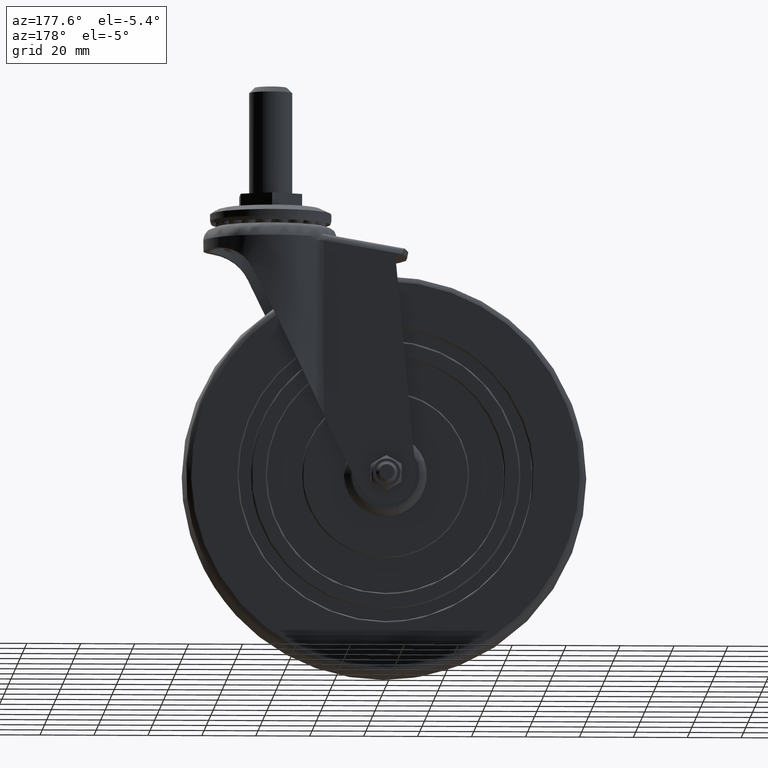
[diagram: clean part render]
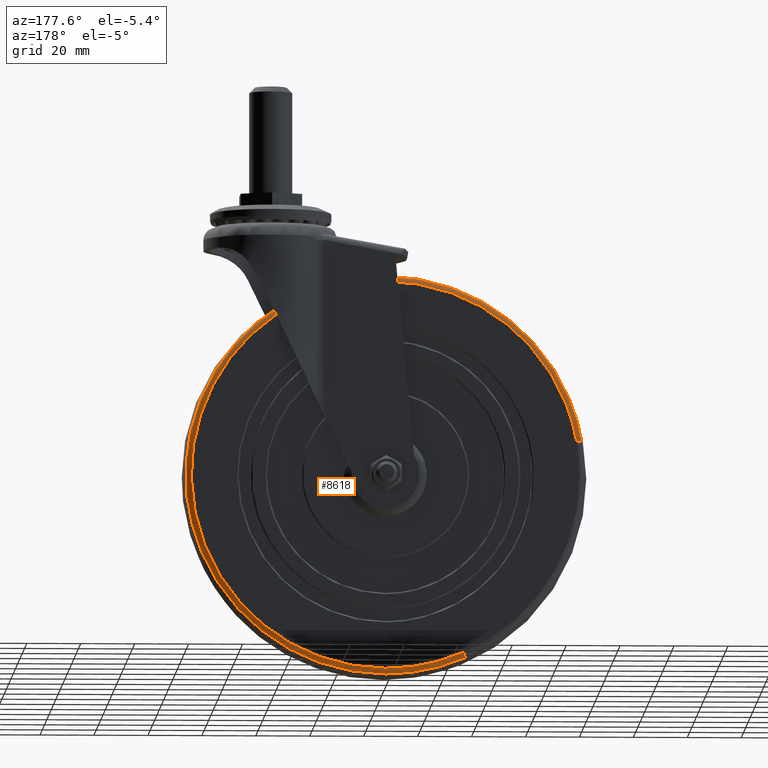
[diagram: same view with one face highlighted and labeled with its STEP entity id]
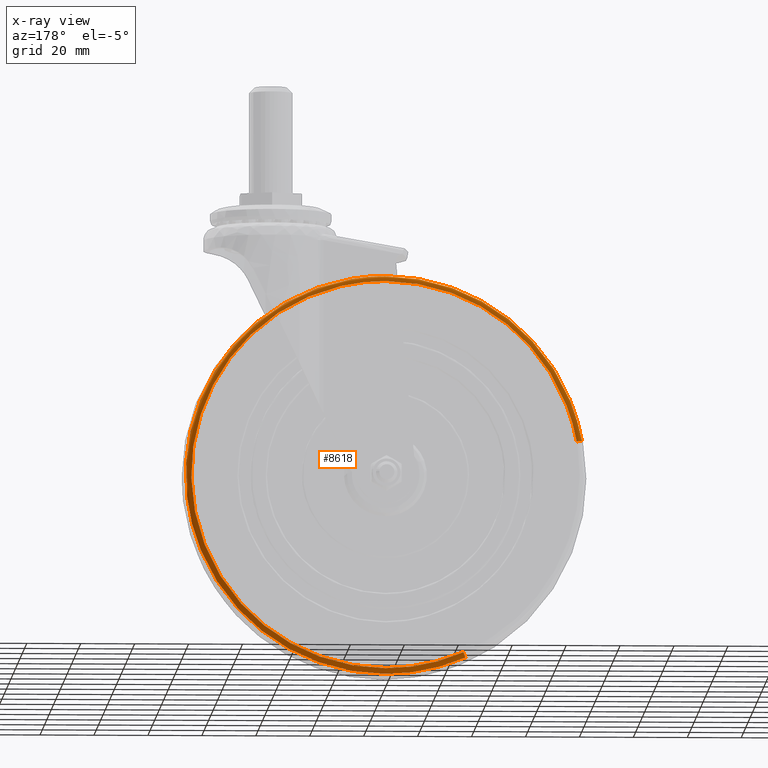
[diagram: x-ray of the same camera — body ghosted, the highlighted face saturated]
A machine part, auxiliary view. The second image highlights one B-rep face of the part: STEP entity #8618.
The next image is the same camera in x-ray: the body ghosted, the highlighted face saturated — about 0% of this face is hidden behind the body in this view.
In plain terms, the highlighted face is a freeform B-spline surface patch.
Its self-contained STEP definition (entity closure, byte-faithful):
#8442=CARTESIAN_POINT('',(-28.803927238520771,13.495963620558236,-65.871175468548572));
#8443=CARTESIAN_POINT('',(-20.985038544828061,13.495963620558236,-69.290192958630414));
#8444=CARTESIAN_POINT('',(-12.583023503607606,13.495963620558241,-70.783794059643157));
#8445=CARTESIAN_POINT('',(58.200770556035536,13.495963620558234,-83.366817563250748));
#8446=CARTESIAN_POINT('',(70.783794059643157,13.495963620558241,-12.583023503607606));
#8447=CARTESIAN_POINT('',(83.366817563250748,13.495963620558234,58.200770556035536));
#8448=CARTESIAN_POINT('',(12.583023503607606,13.495963620558241,70.783794059643157));
#8449=CARTESIAN_POINT('',(-58.200770556035515,13.495963620558234,83.366817563250748));
#8450=CARTESIAN_POINT('',(-70.783794059643157,13.495963620558241,12.583023503607617));
#8451=CARTESIAN_POINT('',(-29.570173746017513,13.617655241222124,-67.623490620906665));
#8452=CARTESIAN_POINT('',(-21.543285771378304,13.617655241222124,-71.133461340704429));
#8453=CARTESIAN_POINT('',(-12.917759032327256,13.617655241222122,-72.666795448184175));
#8454=CARTESIAN_POINT('',(59.749036415856942,13.617655241222124,-85.584554480511443));
#8455=CARTESIAN_POINT('',(72.666795448184175,13.617655241222122,-12.917759032327261));
#8456=CARTESIAN_POINT('',(85.584554480511443,13.617655241222124,59.749036415856942));
#8457=CARTESIAN_POINT('',(12.917759032327266,13.617655241222122,72.666795448184175));
#8458=CARTESIAN_POINT('',(-59.749036415856921,13.617655241222124,85.584554480511443));
#8459=CARTESIAN_POINT('',(-72.666795448184175,13.617655241222122,12.917759032327266));
#8460=CARTESIAN_POINT('',(-29.651586574932924,11.712068887978058,-67.809672133395225));
#8461=CARTESIAN_POINT('',(-21.602598910822305,11.712068887978061,-71.329306531471090));
#8462=CARTESIAN_POINT('',(-12.953324305467085,11.712068887978054,-72.866862226163519));
#8463=CARTESIAN_POINT('',(59.913537920696427,11.712068887978058,-85.820186531630625));
#8464=CARTESIAN_POINT('',(72.866862226163519,11.712068887978054,-12.953324305467097));
#8465=CARTESIAN_POINT('',(85.820186531630640,11.712068887978058,59.913537920696427));
#8466=CARTESIAN_POINT('',(12.953324305467097,11.712068887978054,72.866862226163519));
#8467=CARTESIAN_POINT('',(-59.913537920696427,11.712068887978058,85.820186531630640));
#8468=CARTESIAN_POINT('',(-72.866862226163519,11.712068887978054,12.953324305467106));
#8476=(BOUNDED_SURFACE()B_SPLINE_SURFACE(2,2,((#8442,#8451,#8460),(#8443,#8452,#8461),(#8444,#8453,#8462),(#8445,#8454,#8463),(#8446,#8455,#8464),(#8447,#8456,#8465),(#8448,#8457,#8466),(#8449,#8458,#8467),(#8450,#8459,#8468)),.UNSPECIFIED.,.F.,.F.,.U.)B_SPLINE_SURFACE_WITH_KNOTS((3,2,2,2,3),(3,3),(0.0,19.619604910320049,142.242135599820300,264.864666289320500,387.487196978820690),(0.0,3.214112324344955),.UNSPECIFIED.)GEOMETRIC_REPRESENTATION_ITEM()RATIONAL_B_SPLINE_SURFACE(((0.845897495018525,0.609983695639770,0.843720312349657),(0.875157128333191,0.631083059767753,0.872904636815526),(0.918186000854759,0.662111536426552,0.915822761030040),(0.649255547594958,0.468183557309058,0.647584484689328),(0.918186000854759,0.662111536426552,0.915822761030040),(0.649255547594958,0.468183557309058,0.647584484689328),(0.918186000854759,0.662111536426552,0.915822761030040),(0.649255547594958,0.468183557309058,0.647584484689328),(0.918186000854759,0.662111536426552,0.915822761030040)))REPRESENTATION_ITEM('')SURFACE());
#8477=CARTESIAN_POINT('',(-28.854809778042270,13.500000000000000,-65.987537819067441));
#8478=VERTEX_POINT('',#8477);
#8479=CARTESIAN_POINT('',(0.0,13.500000000000000,-72.020519245974285));
#8480=VERTEX_POINT('',#8479);
#8481=CARTESIAN_POINT('',(-28.854809778042270,13.500000000000000,-65.987537819067441));
#8482=CARTESIAN_POINT('',(-15.058094628135253,13.500000000000000,-72.020519245974270));
#8483=CARTESIAN_POINT('',(0.0,13.500000000000000,-72.020519245974285));
#8491=(BOUNDED_CURVE()B_SPLINE_CURVE(2,(#8481,#8482,#8483),.UNSPECIFIED.,.F.,.U.)B_SPLINE_CURVE_WITH_KNOTS((3,3),(0.931970470086370,1.0),.UNSPECIFIED.)CURVE()GEOMETRIC_REPRESENTATION_ITEM()RATIONAL_B_SPLINE_CURVE((0.883973368981325,0.920298448036923,1.0))REPRESENTATION_ITEM(''));
#8492=EDGE_CURVE('',#8478,#8480,#8491,.T.);
#8493=ORIENTED_EDGE('',*,*,#8492,.T.);
#8494=CARTESIAN_POINT('',(0.0,13.500000000000000,72.020519245974285));
#8495=VERTEX_POINT('',#8494);
#8496=CARTESIAN_POINT('',(0.0,13.500000000000000,-72.020519245974285));
#8497=CARTESIAN_POINT('',(72.020519245974299,13.500000000000000,-72.020519245974299));
#8498=CARTESIAN_POINT('',(72.020519245974285,13.500000000000000,1.855278E-015));
#8499=CARTESIAN_POINT('',(72.020519245974299,13.500000000000000,72.020519245974299));
#8500=CARTESIAN_POINT('',(0.0,13.500000000000000,72.020519245974285));
#8508=(BOUNDED_CURVE()B_SPLINE_CURVE(2,(#8496,#8497,#8498,#8499,#8500),.UNSPECIFIED.,.F.,.U.)B_SPLINE_CURVE_WITH_KNOTS((3,2,3),(0.0,0.250000000000000,0.500000000000000),.UNSPECIFIED.)CURVE()GEOMETRIC_REPRESENTATION_ITEM()RATIONAL_B_SPLINE_CURVE((1.0,0.707106781186548,1.0,0.707106781186548,1.0))REPRESENTATION_ITEM(''));
#8509=EDGE_CURVE('',#8480,#8495,#8508,.T.);
#8510=ORIENTED_EDGE('',*,*,#8509,.T.);
#8511=CARTESIAN_POINT('',(-70.908834619511140,13.500000000000000,12.605251590490081));
#8512=VERTEX_POINT('',#8511);
#8513=CARTESIAN_POINT('',(0.0,13.500000000000000,72.020519245974285));
#8514=CARTESIAN_POINT('',(-60.346760058588565,13.499999999999995,72.020519245974299));
#8515=CARTESIAN_POINT('',(-70.908834619511140,13.499999999999998,12.605251590490088));
#8523=(BOUNDED_CURVE()B_SPLINE_CURVE(2,(#8513,#8514,#8515),.UNSPECIFIED.,.F.,.U.)B_SPLINE_CURVE_WITH_KNOTS((3,3),(0.500000000000000,0.719918253208982),.UNSPECIFIED.)CURVE()GEOMETRIC_REPRESENTATION_ITEM()RATIONAL_B_SPLINE_CURVE((1.0,0.742349739767158,0.937995440888285))REPRESENTATION_ITEM(''));
#8524=EDGE_CURVE('',#8495,#8512,#8523,.T.);
#8525=ORIENTED_EDGE('',*,*,#8524,.T.);
#8526=CARTESIAN_POINT('',(-72.849599156032269,11.838243067299739,12.950255501209700));
#8527=VERTEX_POINT('',#8526);
#8528=CARTESIAN_POINT('',(-70.908834619511140,13.500000000000004,12.605251590490083));
#8529=CARTESIAN_POINT('',(-72.568853515190085,13.499999973113093,12.900348187638491));
#8530=CARTESIAN_POINT('',(-72.849599156032269,11.838243067299741,12.950255501209705));
#8538=(BOUNDED_CURVE()B_SPLINE_CURVE(2,(#8528,#8529,#8530),.UNSPECIFIED.,.F.,.U.)B_SPLINE_CURVE_WITH_KNOTS((3,3),(-1.711130078046222,-0.296087783244123),.UNSPECIFIED.)CURVE()GEOMETRIC_REPRESENTATION_ITEM()RATIONAL_B_SPLINE_CURVE((0.895978405287796,0.684212213404569,0.893829010899645))REPRESENTATION_ITEM(''));
#8539=EDGE_CURVE('',#8512,#8527,#8538,.T.);
#8540=ORIENTED_EDGE('',*,*,#8539,.T.);
#8541=CARTESIAN_POINT('',(0.0,11.838235294117659,73.991710988502987));
#8542=VERTEX_POINT('',#8541);
#8543=CARTESIAN_POINT('',(0.0,11.838235294117659,73.991710988502987));
#8544=CARTESIAN_POINT('',(-61.998443740864246,11.838235294117657,73.991710988502987));
#8545=CARTESIAN_POINT('',(-72.849599156032255,11.838243067299732,12.950255501209703));
#8553=(BOUNDED_CURVE()B_SPLINE_CURVE(2,(#8543,#8544,#8545),.UNSPECIFIED.,.F.,.U.)B_SPLINE_CURVE_WITH_KNOTS((3,3),(0.500000000000000,0.719918256181921),.UNSPECIFIED.)CURVE()GEOMETRIC_REPRESENTATION_ITEM()RATIONAL_B_SPLINE_CURVE((1.0,0.742349736284142,0.937995446177913))REPRESENTATION_ITEM(''));
#8554=EDGE_CURVE('',#8542,#8527,#8553,.T.);
#8555=ORIENTED_EDGE('',*,*,#8554,.F.);
#8556=CARTESIAN_POINT('',(73.496826248795060,11.838279870516120,-8.543342112623503));
#8557=VERTEX_POINT('',#8556);
#8558=CARTESIAN_POINT('',(73.496826248795045,11.838279870516114,-8.543342112623503));
#8559=CARTESIAN_POINT('',(73.991703586735184,11.838278720842078,-4.286003632551815));
#8560=CARTESIAN_POINT('',(73.991703806785964,11.838277429787709,0.000000834809724));
#8561=CARTESIAN_POINT('',(73.991707605646639,11.838255141588478,73.991711381729473));
#8562=CARTESIAN_POINT('',(0.0,11.838235294117659,73.991710988502987));
#8570=(BOUNDED_CURVE()B_SPLINE_CURVE(2,(#8558,#8559,#8560,#8561,#8562),.UNSPECIFIED.,.F.,.U.)B_SPLINE_CURVE_WITH_KNOTS((3,2,3),(0.230000121728145,0.250000000000000,0.500000000000000),.UNSPECIFIED.)CURVE()GEOMETRIC_REPRESENTATION_ITEM()RATIONAL_B_SPLINE_CURVE((0.956886357781300,0.976568685108317,1.0,0.707106781186547,1.0))REPRESENTATION_ITEM(''));
#8571=EDGE_CURVE('',#8557,#8542,#8570,.T.);
#8572=ORIENTED_EDGE('',*,*,#8571,.F.);
#8573=CARTESIAN_POINT('',(0.0,11.838254326075949,-73.991707722818305));
#8574=VERTEX_POINT('',#8573);
#8575=CARTESIAN_POINT('',(0.0,11.838254326075949,-73.991707722818305));
#8576=CARTESIAN_POINT('',(65.889048500982597,11.838267098296033,-73.991708914077421));
#8577=CARTESIAN_POINT('',(73.496826248795045,11.838279870516114,-8.543342112623503));
#8585=(BOUNDED_CURVE()B_SPLINE_CURVE(2,(#8575,#8576,#8577),.UNSPECIFIED.,.F.,.U.)B_SPLINE_CURVE_WITH_KNOTS((3,3),(0.0,0.230000121728145),.UNSPECIFIED.)CURVE()GEOMETRIC_REPRESENTATION_ITEM()RATIONAL_B_SPLINE_CURVE((1.0,0.730538096078230,0.956886357781300))REPRESENTATION_ITEM(''));
#8586=EDGE_CURVE('',#8574,#8557,#8585,.T.);
#8587=ORIENTED_EDGE('',*,*,#8586,.F.);
#8588=CARTESIAN_POINT('',(-29.644560757733181,11.838253559906700,-67.793604920096286));
#8589=VERTEX_POINT('',#8588);
#8590=CARTESIAN_POINT('',(-29.644560757733181,11.838253559906700,-67.793604920096271));
#8591=CARTESIAN_POINT('',(-15.470231960353187,11.838254326075951,-73.991707722818305));
#8592=CARTESIAN_POINT('',(0.0,11.838254326075949,-73.991707722818305));
#8600=(BOUNDED_CURVE()B_SPLINE_CURVE(2,(#8590,#8591,#8592),.UNSPECIFIED.,.F.,.U.)B_SPLINE_CURVE_WITH_KNOTS((3,3),(0.931970472734252,1.0),.UNSPECIFIED.)CURVE()GEOMETRIC_REPRESENTATION_ITEM()RATIONAL_B_SPLINE_CURVE((0.883973371809055,0.920298451139110,1.0))REPRESENTATION_ITEM(''));
#8601=EDGE_CURVE('',#8589,#8574,#8600,.T.);
#8602=ORIENTED_EDGE('',*,*,#8601,.F.);
#8603=CARTESIAN_POINT('',(-28.854809778042270,13.499999999999998,-65.987537819067455));
#8604=CARTESIAN_POINT('',(-29.530314718235019,13.499999973193713,-67.532337737783294));
#8605=CARTESIAN_POINT('',(-29.644560757733174,11.838253559906699,-67.793604920096286));
#8613=(BOUNDED_CURVE()B_SPLINE_CURVE(2,(#8603,#8604,#8605),.UNSPECIFIED.,.F.,.U.)B_SPLINE_CURVE_WITH_KNOTS((3,3),(-1.711130078098677,-0.296093679495227),.UNSPECIFIED.)CURVE()GEOMETRIC_REPRESENTATION_ITEM()RATIONAL_B_SPLINE_CURVE((0.825438296740931,0.630345205928425,0.823456514167421))REPRESENTATION_ITEM(''));
#8614=EDGE_CURVE('',#8478,#8589,#8613,.T.);
#8615=ORIENTED_EDGE('',*,*,#8614,.F.);
#8616=EDGE_LOOP('',(#8493,#8510,#8525,#8540,#8555,#8572,#8587,#8602,#8615));
#8617=FACE_OUTER_BOUND('',#8616,.T.);
#8618=ADVANCED_FACE('',(#8617),#8476,.T.);